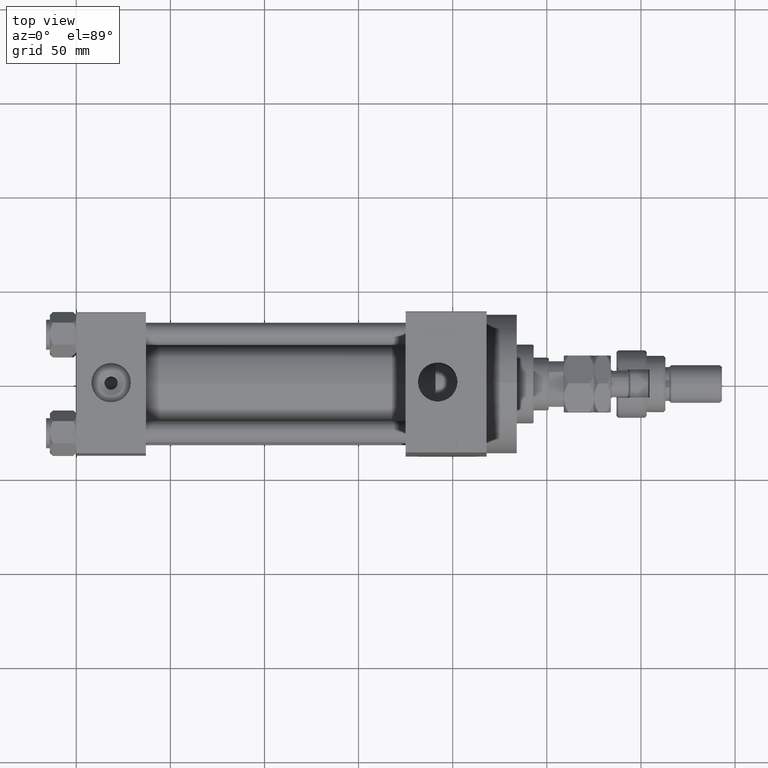
[diagram: clean part render]
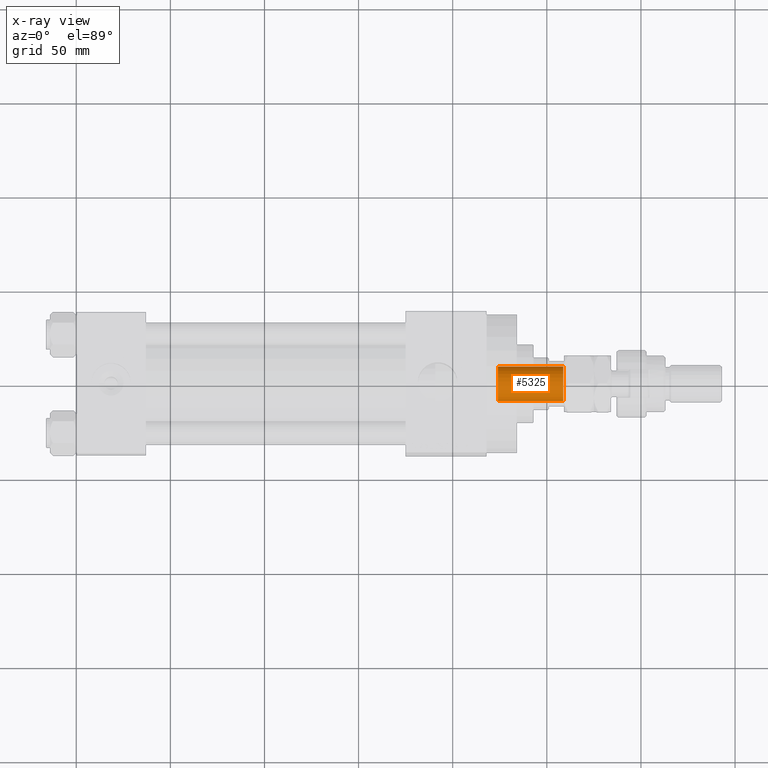
[diagram: x-ray — body ghosted, one internal face saturated and labeled with its STEP entity id]
A machine part, top view, then the same camera in x-ray: the body is ghosted and one INTERNAL B-rep face — a face not visible from any outside direction — is saturated and labeled: STEP entity #5325.
In plain terms, the highlighted cylindrical surface (edge-blend (fillet) strip) has radius 9.25 mm, axis along (1, 0, 0).
Its self-contained STEP definition (entity closure, byte-faithful):
#2152 = LINE ( 'NONE', #17657, #26544 ) ;
#4531 = AXIS2_PLACEMENT_3D ( 'NONE', #10863, #14904, #10613 ) ;
#5325 = ADVANCED_FACE ( 'NONE', ( #20803 ), #9648, .F. ) ;
#6433 = DIRECTION ( 'NONE',  ( -0.000000000000000000, -0.000000000000000000, 1.000000000000000000 ) ) ;
#9648 = CYLINDRICAL_SURFACE ( 'NONE', #48113, 9.249999999999994671 ) ;
#10611 = VERTEX_POINT ( 'NONE', #12962 ) ;
#10613 = DIRECTION ( 'NONE',  ( 1.000000000000000000, 0.000000000000000000, 0.000000000000000000 ) ) ;
#10863 = CARTESIAN_POINT ( 'NONE',  ( 0.000000000000000000, 0.000000000000000000, 187.0000000000000000 ) ) ;
#11899 = AXIS2_PLACEMENT_3D ( 'NONE', #16137, #40292, #16641 ) ;
#12917 = EDGE_CURVE ( 'NONE', #10611, #43209, #13469, .T. ) ;
#12962 = CARTESIAN_POINT ( 'NONE',  ( -9.249999999999992895, 1.132798289211300712E-15, 187.0000000000000000 ) ) ;
#13469 = CIRCLE ( 'NONE', #4531, 9.249999999999992895 ) ;
#13568 = CARTESIAN_POINT ( 'NONE',  ( -9.249999999999994671, 1.132798289211300909E-15, 221.6999999999999602 ) ) ;
#14060 = LINE ( 'NONE', #17867, #48458 ) ;
#14478 = CARTESIAN_POINT ( 'NONE',  ( 9.249999999999992895, 0.000000000000000000, 187.0000000000000000 ) ) ;
#14589 = DIRECTION ( 'NONE',  ( -0.000000000000000000, -0.000000000000000000, 1.000000000000000000 ) ) ;
#14904 = DIRECTION ( 'NONE',  ( -0.000000000000000000, -0.000000000000000000, 1.000000000000000000 ) ) ;
#16137 = CARTESIAN_POINT ( 'NONE',  ( 0.000000000000000000, 0.000000000000000000, 221.6999999999999602 ) ) ;
#16641 = DIRECTION ( 'NONE',  ( 1.000000000000000000, 0.000000000000000000, 0.000000000000000000 ) ) ;
#17657 = CARTESIAN_POINT ( 'NONE',  ( -9.249999999999994671, 1.132798289211300909E-15, 222.0000000000000000 ) ) ;
#17867 = CARTESIAN_POINT ( 'NONE',  ( 9.249999999999994671, 0.000000000000000000, 222.0000000000000000 ) ) ;
#20803 = FACE_OUTER_BOUND ( 'NONE', #42441, .T. ) ;
#20854 = ORIENTED_EDGE ( 'NONE', *, *, #12917, .F. ) ;
#23357 = CARTESIAN_POINT ( 'NONE',  ( 9.249999999999994671, 0.000000000000000000, 221.6999999999999602 ) ) ;
#24869 = DIRECTION ( 'NONE',  ( -0.000000000000000000, -0.000000000000000000, 1.000000000000000000 ) ) ;
#24871 = CIRCLE ( 'NONE', #11899, 9.249999999999994671 ) ;
#26355 = VERTEX_POINT ( 'NONE', #23357 ) ;
#26544 = VECTOR ( 'NONE', #14589, 1000.000000000000000 ) ;
#27641 = ORIENTED_EDGE ( 'NONE', *, *, #45482, .T. ) ;
#28692 = DIRECTION ( 'NONE',  ( 1.000000000000000000, 0.000000000000000000, 0.000000000000000000 ) ) ;
#30957 = ORIENTED_EDGE ( 'NONE', *, *, #41753, .T. ) ;
#36533 = ORIENTED_EDGE ( 'NONE', *, *, #49064, .F. ) ;
#40292 = DIRECTION ( 'NONE',  ( 0.000000000000000000, 0.000000000000000000, 1.000000000000000000 ) ) ;
#40639 = CARTESIAN_POINT ( 'NONE',  ( 0.000000000000000000, 0.000000000000000000, 222.0000000000000000 ) ) ;
#41489 = VERTEX_POINT ( 'NONE', #13568 ) ;
#41753 = EDGE_CURVE ( 'NONE', #41489, #26355, #24871, .T. ) ;
#42441 = EDGE_LOOP ( 'NONE', ( #20854, #27641, #30957, #36533 ) ) ;
#43209 = VERTEX_POINT ( 'NONE', #14478 ) ;
#45482 = EDGE_CURVE ( 'NONE', #10611, #41489, #2152, .T. ) ;
#48113 = AXIS2_PLACEMENT_3D ( 'NONE', #40639, #24869, #28692 ) ;
#48458 = VECTOR ( 'NONE', #6433, 1000.000000000000000 ) ;
#49064 = EDGE_CURVE ( 'NONE', #43209, #26355, #14060, .T. ) ;